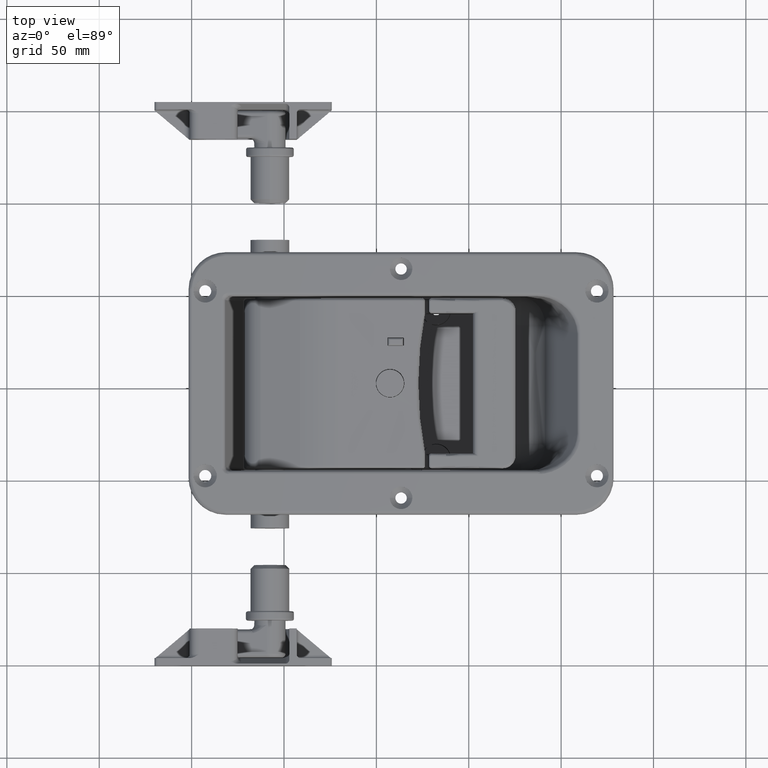
[diagram: clean part render]
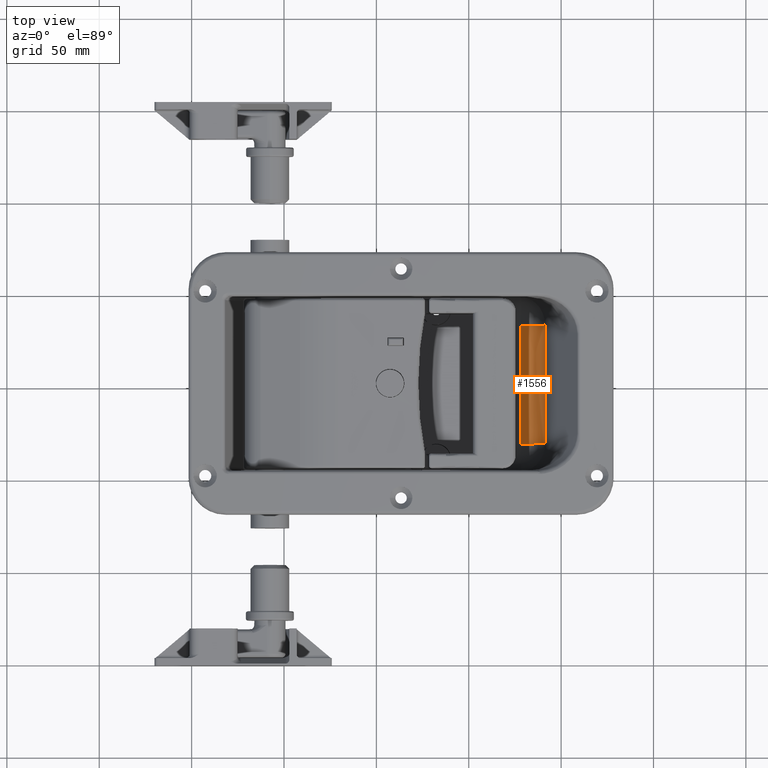
[diagram: same view with one face highlighted and labeled with its STEP entity id]
A machine part, top view. The second image highlights one B-rep face of the part: STEP entity #1556.
In plain terms, the highlighted face is a freeform B-spline surface patch.
Its self-contained STEP definition (entity closure, byte-faithful):
#189 = VERTEX_POINT ( 'NONE', #7939 ) ;
#190 = VERTEX_POINT ( 'NONE', #7940 ) ;
#273 = VERTEX_POINT ( 'NONE', #8023 ) ;
#276 = VERTEX_POINT ( 'NONE', #8026 ) ;
#1556 = ADVANCED_FACE ( 'NONE', ( #7792 ), #25407, .T. ) ;
#4709 = EDGE_CURVE ( 'NONE', #189, #190, #25700, .T. ) ;
#5516 = EDGE_LOOP ( 'NONE', ( #7351, #7352, #7353, #7354 ) ) ;
#6216 = EDGE_CURVE ( 'NONE', #276, #273, #25739, .T. ) ;
#6219 = EDGE_CURVE ( 'NONE', #189, #273, #25508, .T. ) ;
#6222 = EDGE_CURVE ( 'NONE', #190, #276, #25510, .T. ) ;
#7351 = ORIENTED_EDGE ( 'NONE', *, *, #6219, .T. ) ;
#7352 = ORIENTED_EDGE ( 'NONE', *, *, #6216, .F. ) ;
#7353 = ORIENTED_EDGE ( 'NONE', *, *, #6222, .F. ) ;
#7354 = ORIENTED_EDGE ( 'NONE', *, *, #4709, .F. ) ;
#7792 = FACE_OUTER_BOUND ( 'NONE', #5516, .T. ) ;
#7939 = CARTESIAN_POINT ( 'NONE',  ( 135.9642088072416500, -32.10000000000000100, -14.99999999999999500 ) ) ;
#7940 = CARTESIAN_POINT ( 'NONE',  ( 135.9642088072416500, 32.10000000000000100, -14.99999999999999500 ) ) ;
#8023 = CARTESIAN_POINT ( 'NONE',  ( 148.9545898640082000, -32.10000000000000100, -7.499999999999995600 ) ) ;
#8026 = CARTESIAN_POINT ( 'NONE',  ( 148.9545898640082000, 32.10000000000000100, -7.499999999999995600 ) ) ;
#9910 = CARTESIAN_POINT ( 'NONE',  ( 135.9642088072416500, -32.10000000000000100, -14.99999999999999500 ) ) ;
#9911 = CARTESIAN_POINT ( 'NONE',  ( 135.9642088072416500, -16.05000000000000100, -14.99999999999999500 ) ) ;
#9912 = CARTESIAN_POINT ( 'NONE',  ( 135.9642088072416500, 5.204170427930421300E-015, -14.99999999999999500 ) ) ;
#9913 = CARTESIAN_POINT ( 'NONE',  ( 135.9642088072416500, 16.05000000000000800, -14.99999999999999500 ) ) ;
#9914 = CARTESIAN_POINT ( 'NONE',  ( 135.9642088072416500, 21.40000000000000900, -14.99999999999999500 ) ) ;
#9915 = CARTESIAN_POINT ( 'NONE',  ( 135.9642088072416500, 26.75000000000000700, -14.99999999999999500 ) ) ;
#9916 = CARTESIAN_POINT ( 'NONE',  ( 135.9642088072416500, 32.10000000000000100, -14.99999999999999500 ) ) ;
#9917 = CARTESIAN_POINT ( 'NONE',  ( 144.6244628450860100, -32.10000000000000100, -14.99999999999999500 ) ) ;
#9918 = CARTESIAN_POINT ( 'NONE',  ( 144.6244628450860100, -16.05000000000000100, -14.99999999999999500 ) ) ;
#9919 = CARTESIAN_POINT ( 'NONE',  ( 144.6244628450860100, 5.204170427930421300E-015, -14.99999999999999500 ) ) ;
#9920 = CARTESIAN_POINT ( 'NONE',  ( 144.6244628450860100, 16.05000000000000800, -14.99999999999999500 ) ) ;
#9921 = CARTESIAN_POINT ( 'NONE',  ( 144.6244628450860100, 21.40000000000000900, -14.99999999999999500 ) ) ;
#9922 = CARTESIAN_POINT ( 'NONE',  ( 144.6244628450860100, 26.75000000000000700, -14.99999999999999500 ) ) ;
#9923 = CARTESIAN_POINT ( 'NONE',  ( 144.6244628450860100, 32.10000000000000100, -14.99999999999999500 ) ) ;
#9924 = CARTESIAN_POINT ( 'NONE',  ( 148.9545898640082000, -32.10000000000000100, -7.499999999999995600 ) ) ;
#9925 = CARTESIAN_POINT ( 'NONE',  ( 148.9545898640082000, -16.05000000000000100, -7.499999999999995600 ) ) ;
#9926 = CARTESIAN_POINT ( 'NONE',  ( 148.9545898640082000, 5.204170427930421300E-015, -7.499999999999995600 ) ) ;
#9927 = CARTESIAN_POINT ( 'NONE',  ( 148.9545898640082000, 16.05000000000000800, -7.499999999999995600 ) ) ;
#9928 = CARTESIAN_POINT ( 'NONE',  ( 148.9545898640082000, 21.40000000000000900, -7.499999999999995600 ) ) ;
#9929 = CARTESIAN_POINT ( 'NONE',  ( 148.9545898640082000, 26.75000000000000700, -7.499999999999995600 ) ) ;
#9930 = CARTESIAN_POINT ( 'NONE',  ( 148.9545898640082000, 32.10000000000000100, -7.499999999999995600 ) ) ;
#21709 = CARTESIAN_POINT ( 'NONE',  ( 135.9642088072416500, -32.10000000000000100, -14.99999999999999500 ) ) ;
#21710 = CARTESIAN_POINT ( 'NONE',  ( 135.9642088072416500, -16.05000000000000100, -14.99999999999999500 ) ) ;
#21711 = CARTESIAN_POINT ( 'NONE',  ( 135.9642088072416500, 5.204170427930421300E-015, -14.99999999999999500 ) ) ;
#21712 = CARTESIAN_POINT ( 'NONE',  ( 135.9642088072416500, 16.05000000000000800, -14.99999999999999500 ) ) ;
#21713 = CARTESIAN_POINT ( 'NONE',  ( 135.9642088072416500, 21.40000000000000900, -14.99999999999999500 ) ) ;
#21714 = CARTESIAN_POINT ( 'NONE',  ( 135.9642088072416500, 26.75000000000000700, -14.99999999999999500 ) ) ;
#21715 = CARTESIAN_POINT ( 'NONE',  ( 135.9642088072416500, 32.10000000000000100, -14.99999999999999500 ) ) ;
#22649 = CARTESIAN_POINT ( 'NONE',  ( 148.9545898640082000, 32.10000000000000100, -7.499999999999995600 ) ) ;
#22650 = CARTESIAN_POINT ( 'NONE',  ( 148.9545898640082000, 26.75000000000000700, -7.499999999999995600 ) ) ;
#22651 = CARTESIAN_POINT ( 'NONE',  ( 148.9545898640082000, 21.40000000000000900, -7.499999999999995600 ) ) ;
#22652 = CARTESIAN_POINT ( 'NONE',  ( 148.9545898640082000, 16.05000000000000800, -7.499999999999995600 ) ) ;
#22653 = CARTESIAN_POINT ( 'NONE',  ( 148.9545898640082000, 5.204170427930421300E-015, -7.499999999999995600 ) ) ;
#22654 = CARTESIAN_POINT ( 'NONE',  ( 148.9545898640082000, -16.05000000000000100, -7.499999999999995600 ) ) ;
#22655 = CARTESIAN_POINT ( 'NONE',  ( 148.9545898640082000, -32.10000000000000100, -7.499999999999995600 ) ) ;
#22697 = CARTESIAN_POINT ( 'NONE',  ( 135.9642088072416500, -32.10000000000000100, -14.99999999999999500 ) ) ;
#22698 = CARTESIAN_POINT ( 'NONE',  ( 144.6244628450860100, -32.10000000000000100, -14.99999999999999500 ) ) ;
#22699 = CARTESIAN_POINT ( 'NONE',  ( 148.9545898640082000, -32.10000000000000100, -7.499999999999995600 ) ) ;
#22741 = CARTESIAN_POINT ( 'NONE',  ( 135.9642088072416500, 32.10000000000000100, -14.99999999999999500 ) ) ;
#22742 = CARTESIAN_POINT ( 'NONE',  ( 144.6244628450860100, 32.10000000000000100, -14.99999999999999500 ) ) ;
#22743 = CARTESIAN_POINT ( 'NONE',  ( 148.9545898640082000, 32.10000000000000100, -7.499999999999995600 ) ) ;
#25407 =( BOUNDED_SURFACE ( )  B_SPLINE_SURFACE ( 2, 3, ( 
 ( #9910, #9911, #9912, #9913, #9914, #9915, #9916 ),
 ( #9917, #9918, #9919, #9920, #9921, #9922, #9923 ),
 ( #9924, #9925, #9926, #9927, #9928, #9929, #9930 ) ),
 .UNSPECIFIED., .F., .F., .F. ) 
 B_SPLINE_SURFACE_WITH_KNOTS ( ( 3, 3 ),
 ( 4, 3, 4 ),
 ( 0.0000000000000000000, 1.000000000000000000 ),
 ( 0.0000000000000000000, 0.7500000000000001100, 1.000000000000000000 ),
 .UNSPECIFIED. ) 
 GEOMETRIC_REPRESENTATION_ITEM ( )  RATIONAL_B_SPLINE_SURFACE ( (
 ( 1.000000000000000000, 1.000000000000000000, 1.000000000000000000, 1.000000000000000000, 1.000000000000000000, 1.000000000000000000, 1.000000000000000000),
 ( 0.8660254037844387100, 0.8660254037844387100, 0.8660254037844387100, 0.8660254037844387100, 0.8660254037844387100, 0.8660254037844387100, 0.8660254037844387100),
 ( 1.000000000000000000, 1.000000000000000000, 1.000000000000000000, 1.000000000000000000, 1.000000000000000000, 1.000000000000000000, 1.000000000000000000) ) ) 
 REPRESENTATION_ITEM ( '' )  SURFACE ( )  );
#25508 =( BOUNDED_CURVE ( )  B_SPLINE_CURVE ( 2, ( #22697, #22698, #22699 ),
 .UNSPECIFIED., .F., .F. ) 
 B_SPLINE_CURVE_WITH_KNOTS ( ( 3, 3 ),
 ( 0.0000000000000000000, 1.000000000000000000 ),
 .UNSPECIFIED. ) 
 CURVE ( )  GEOMETRIC_REPRESENTATION_ITEM ( )  RATIONAL_B_SPLINE_CURVE ( ( 1.000000000000000000, 0.8660254037844387100, 1.000000000000000000 ) ) 
 REPRESENTATION_ITEM ( '' )  );
#25510 =( BOUNDED_CURVE ( )  B_SPLINE_CURVE ( 2, ( #22741, #22742, #22743 ),
 .UNSPECIFIED., .F., .F. ) 
 B_SPLINE_CURVE_WITH_KNOTS ( ( 3, 3 ),
 ( 0.0000000000000000000, 1.000000000000000000 ),
 .UNSPECIFIED. ) 
 CURVE ( )  GEOMETRIC_REPRESENTATION_ITEM ( )  RATIONAL_B_SPLINE_CURVE ( ( 1.000000000000000000, 0.8660254037844387100, 1.000000000000000000 ) ) 
 REPRESENTATION_ITEM ( '' )  );
#25700 = B_SPLINE_CURVE_WITH_KNOTS ( 'NONE', 3,
 ( #21709, #21710, #21711, #21712, #21713, #21714, #21715 ),
 .UNSPECIFIED., .F., .F.,
 ( 4, 3, 4 ),
 ( 0.0000000000000000000, 0.7500000000000001100, 1.000000000000000000 ),
 .UNSPECIFIED. ) ;
#25739 = B_SPLINE_CURVE_WITH_KNOTS ( 'NONE', 3,
 ( #22649, #22650, #22651, #22652, #22653, #22654, #22655 ),
 .UNSPECIFIED., .F., .F.,
 ( 4, 3, 4 ),
 ( 0.0000000000000000000, 0.2499999999999998900, 1.000000000000000000 ),
 .UNSPECIFIED. ) ;